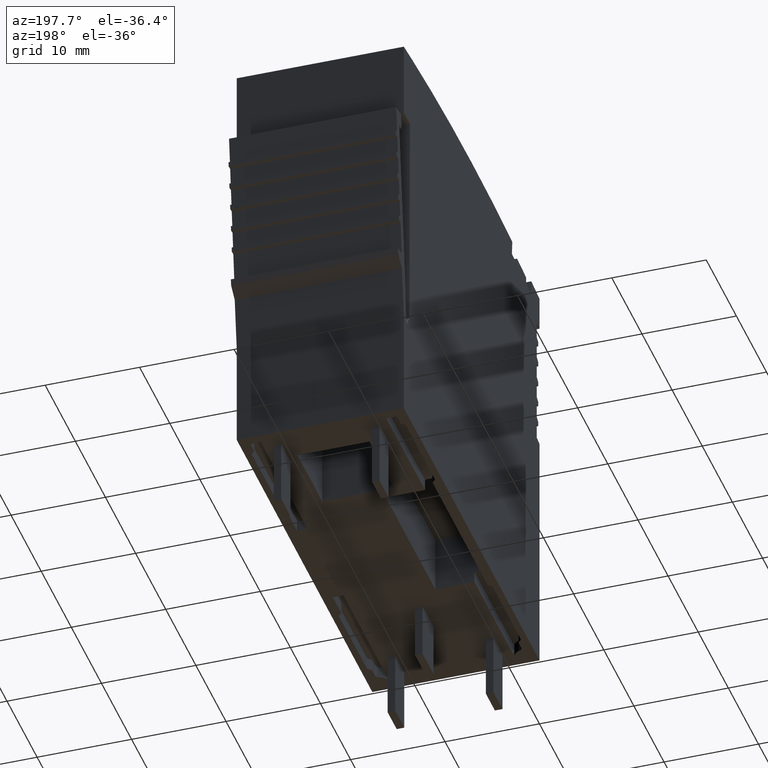
[diagram: clean part render]
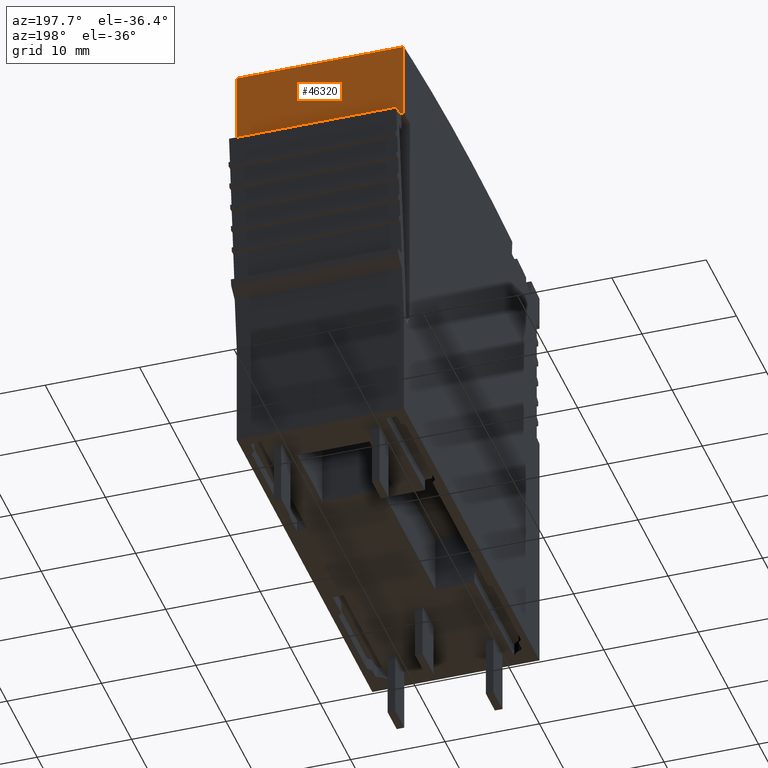
[diagram: same view with one face highlighted and labeled with its STEP entity id]
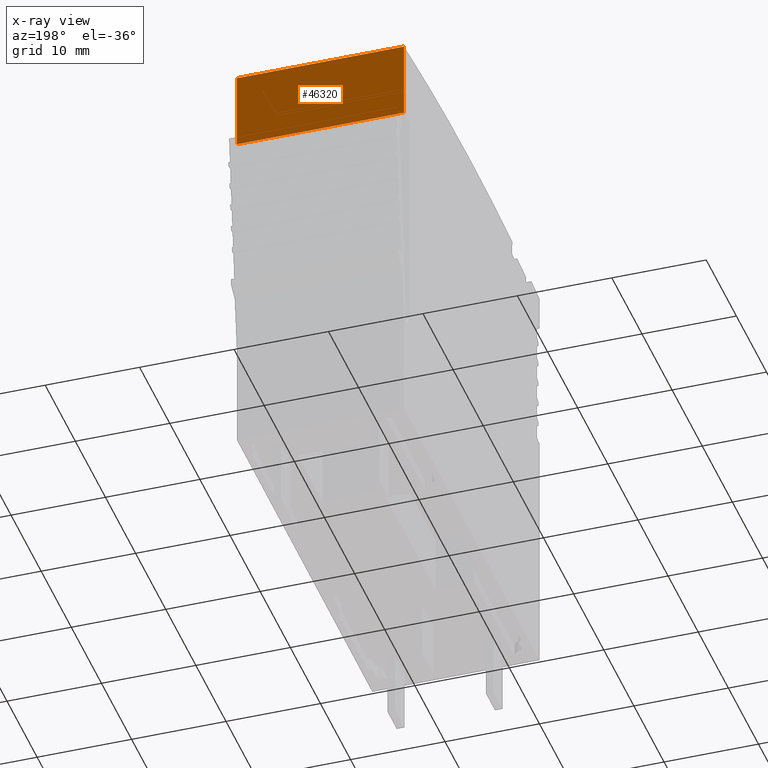
[diagram: x-ray of the same camera — body ghosted, the highlighted face saturated]
A machine part, auxiliary view. The second image highlights one B-rep face of the part: STEP entity #46320.
The next image is the same camera in x-ray: the body ghosted, the highlighted face saturated — about 0% of this face is hidden behind the body in this view.
In plain terms, the highlighted planar face has unit normal (0, 1, -0).
Its self-contained STEP definition (entity closure, byte-faithful):
#3530=CARTESIAN_POINT('',(121.676055138715,92.3842102263611,
-2.14452701454791));
#3540=VERTEX_POINT('',#3530);
#3570=CARTESIAN_POINT('',(121.676055138715,36.9601229990142,
-2.14452701942092));
#3580=DIRECTION('',(3.82813310477567E-21,1.,8.79221417989464E-11));
#3590=VECTOR('',#3580,1.);
#3600=LINE('',#3570,#3590);
#3610=CARTESIAN_POINT('',(121.676055138699,100.664568115907,
-2.14452701381988));
#3620=VERTEX_POINT('',#3610);
#3630=EDGE_CURVE('',#3540,#3620,#3600,.T.);
#11320=CARTESIAN_POINT('',(121.676055137805,100.664568117451,
-19.8445270161484));
#11330=VERTEX_POINT('',#11320);
#11360=CARTESIAN_POINT('',(121.676055137937,36.9601230005704,
-19.8445270217494));
#11370=DIRECTION('',(-3.82813310477567E-21,-1.,-8.79221417989464E-11));
#11380=VECTOR('',#11370,1.);
#11390=LINE('',#11360,#11380);
#11400=CARTESIAN_POINT('',(121.676055137937,92.3842102279174,
-19.8445270168764));
#11410=VERTEX_POINT('',#11400);
#11420=EDGE_CURVE('',#11330,#11410,#11390,.T.);
#45920=CARTESIAN_POINT('',(121.676055138238,92.3842102273151,
-12.9945270158363));
#45930=DIRECTION('',(4.39608349722675E-11,-8.79221417989464E-11,1.));
#45940=VECTOR('',#45930,1.);
#45950=LINE('',#45920,#45940);
#45960=EDGE_CURVE('',#11410,#3540,#45950,.T.);
#46160=CARTESIAN_POINT('',(121.676055138209,56.459082183372,
-13.6445270124035));
#46170=DIRECTION('',(-1.,-3.69976612561218E-23,4.39608349722675E-11));
#46180=DIRECTION('',(4.39608349722675E-11,-8.79221417989464E-11,1.));
#46190=AXIS2_PLACEMENT_3D('',#46160,#46170,#46180);
#46200=PLANE('',#46190);
#46210=CARTESIAN_POINT('',(121.676055137278,100.664568115836,
-3.14452701609898));
#46220=DIRECTION('',(4.39609574369474E-11,8.79221417989464E-11,-1.));
#46230=VECTOR('',#46220,1.);
#46240=LINE('',#46210,#46230);
#46250=EDGE_CURVE('',#3620,#11330,#46240,.T.);
#46260=ORIENTED_EDGE('',*,*,#46250,.T.);
#46270=ORIENTED_EDGE('',*,*,#3630,.T.);
#46280=ORIENTED_EDGE('',*,*,#45960,.T.);
#46290=ORIENTED_EDGE('',*,*,#11420,.T.);
#46300=EDGE_LOOP('',(#46290,#46280,#46270,#46260));
#46310=FACE_OUTER_BOUND('',#46300,.T.);
#46320=ADVANCED_FACE('',(#46310),#46200,.T.);